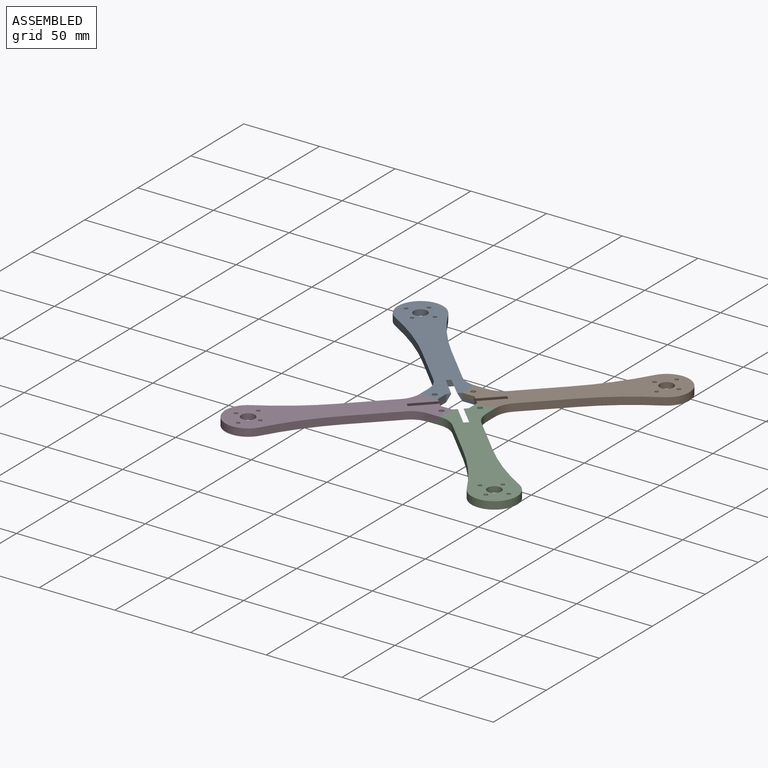
[diagram: assembled view]
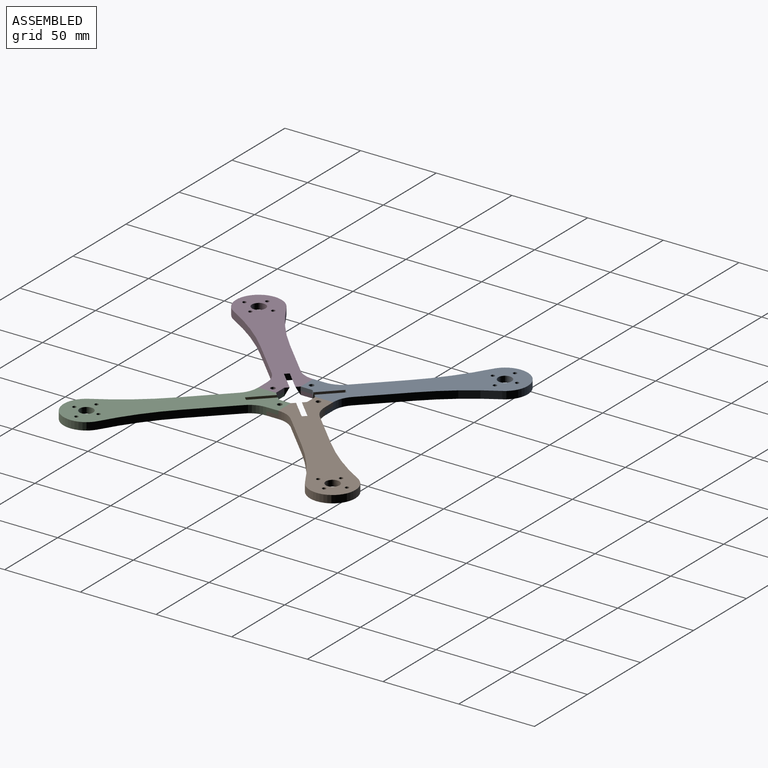
[diagram: assembled view, second angle]
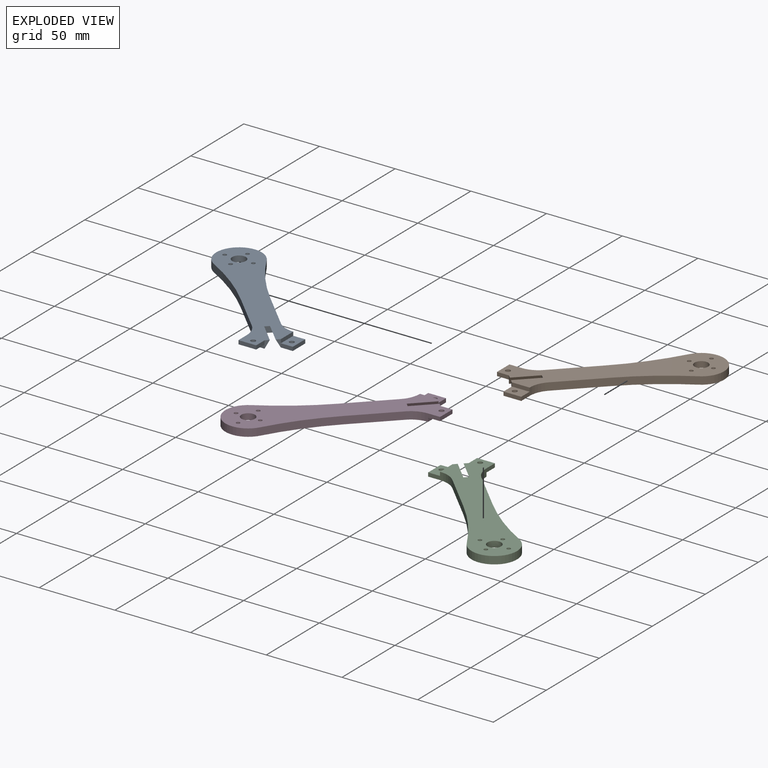
[diagram: exploded view]
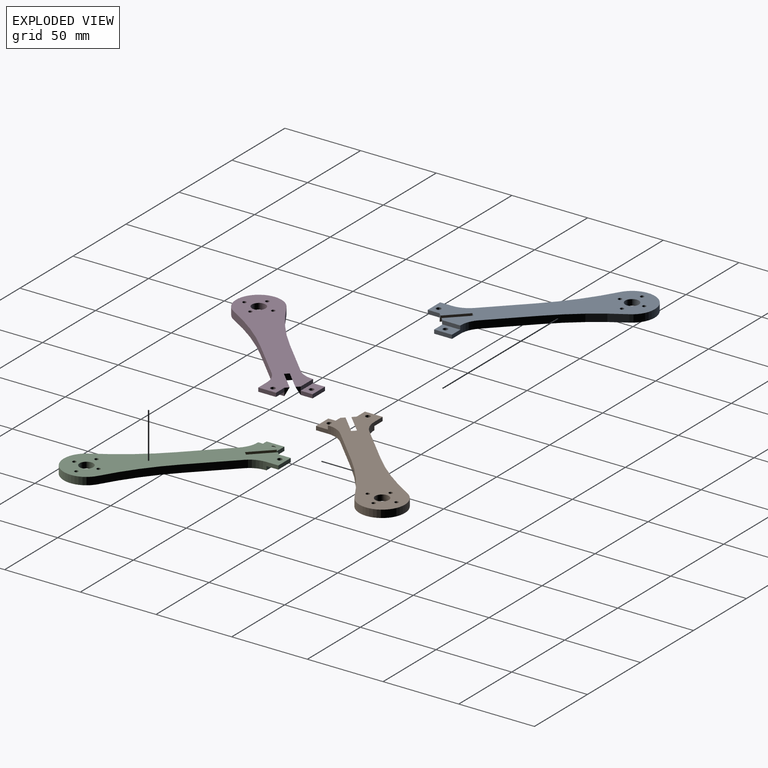
[diagram: exploded view, second angle]
ASSEMBLY  parts=4 mates=3
PART A: 39 faces, bbox 100.2x100.2x5 mm
  f0: plane 1.12x1.12mm, normal (-0.71,-0.71,0), area 1.3mm2, adj f1,f29,f34,f38
  f1: plane 100.25x92.39mm, normal (0,0,-1), area 719.6mm2, adj f0,f3,f7,f8,f9,f10,f11,f12
  f2: plane 5x2.04mm, normal (0.71,0.71,0), area 7.2mm2, adj f3,f19,f26,f37
  f3: plane 11.73x2.5mm, normal (1,0,0), area 29.3mm2, adj f1,f2,f13,f27,f37
  f4: plane 5.53x5.53mm, normal (0.71,0.71,0), area 22mm2, adj f19,f34,f37,f38
  f5: plane 5x2.04mm, normal (0.71,0.71,0), area 7.2mm2, adj f6,f19,f20,f38
  f6: plane 11.73x2.5mm, normal (0,1,0), area 29.3mm2, adj f5,f7,f19,f23
  f7: plane 7.99x5mm, normal (-1,0,0), area 20.3mm2, adj f1,f6,f8,f19,f21,f23
  f8: cylinder r=16mm len=11.31mm, axis (0,0,-1), area 62.8mm2, adj f1,f7,f9,f19
  f9: plane 24.16x24.16mm, normal (-0.71,0.71,0), area 170.8mm2, adj f1,f8,f19,f35
  f10: cylinder r=15mm len=28.07mm, axis (0,0,-1), area 276.5mm2, adj f1,f19,f35,f36
  f11: plane 24.16x24.16mm, normal (0.71,-0.71,0), area 170.8mm2, adj f1,f12,f19,f36
  f12: cylinder r=16mm len=11.31mm, axis (0,0,-1), area 62.8mm2, adj f1,f11,f13,f19
  f13: plane 7.99x5mm, normal (0,-1,0), area 20.3mm2, adj f1,f3,f12,f19,f24,f27
  f14: cylinder r=1.25mm len=4mm, axis (0,0,-1), area 31.4mm2, adj f19,f34
  f15: cylinder r=1.25mm len=4mm, axis (0,0,-1), area 31.4mm2, adj f19,f34
  f16: cylinder r=1.25mm len=4mm, axis (0,0,-1), area 31.4mm2, adj f19,f34
  f17: cylinder r=1.25mm len=4mm, axis (0,0,-1), area 31.4mm2, adj f19,f34
  f18: cylinder r=4.5mm len=9mm, axis (0,0,-1), area 113.1mm2, adj f19,f34
  f19: plane 100.25x92.39mm, normal (0,0,1), area 2277.5mm2, adj f2,f4,f5,f6,f7,f8,f9,f10
  f20: plane 7.86x2.5mm, normal (1,0,0), area 19.6mm2, adj f1,f5,f21,f23,f38
  f21: plane 11.73x2.5mm, normal (0,1,0), area 29.3mm2, adj f1,f7,f20,f23
  f22: cylinder r=1.6mm len=3.2mm, axis (0,0,-1), area 25.1mm2, adj f1,f23
  f23: plane 11.73x7.86mm, normal (0,0,1), area 84.1mm2, adj f6,f7,f20,f21,f22
  f24: plane 11.73x2.5mm, normal (1,0,0), area 29.3mm2, adj f13,f19,f26,f27
  f25: cylinder r=1.6mm len=3.2mm, axis (0,0,-1), area 25.1mm2, adj f19,f27
  f26: plane 7.86x2.5mm, normal (0,1,0), area 19.6mm2, adj f2,f19,f24,f27
  f27: plane 11.73x7.86mm, normal (0,0,-1), area 84.1mm2, adj f3,f13,f24,f25,f26
  f28: plane 1.12x1.12mm, normal (-0.71,-0.71,0), area 1.3mm2, adj f1,f33,f34,f37
  f29: cylinder r=1mm len=1.41mm, axis (0,0,-1), area 1.6mm2, adj f0,f1,f30,f34
  f30: plane 52.72x52.72mm, normal (0.71,-0.71,0), area 74.6mm2, adj f1,f29,f31,f34
  f31: cylinder r=13.5mm len=27mm, axis (0,0,-1), area 71.3mm2, adj f1,f30,f32,f34
  f32: plane 52.72x52.72mm, normal (-0.71,0.71,0), area 74.6mm2, adj f1,f31,f33,f34
  f33: cylinder r=1mm len=1.41mm, axis (0,0,-1), area 1.6mm2, adj f1,f28,f32,f34
  f34: plane 79.47x79.47mm, normal (0,0,-1), area 1456.4mm2, adj f0,f4,f14,f15,f16,f17,f18,f28
  f35: cylinder r=175mm len=37.84mm, axis (0,0,-1), area 238.3mm2, adj f1,f9,f10,f19
  f36: cylinder r=175mm len=37.84mm, axis (0,0,-1), area 238.3mm2, adj f1,f10,f11,f19
  f37: plane 14.47x14.46mm, normal (-0.61,0.61,-0.5), area 101.4mm2, adj f1,f2,f3,f4,f19,f28
  f38: plane 14.47x14.47mm, normal (0.61,-0.61,-0.5), area 101.4mm2, adj f0,f1,f4,f5,f19,f20
PART B: same geometry as A
PART C: same geometry as A
PART D: same geometry as A
PLACE A rot(axis=(0,0,-1),90deg) t=(-0.24,2.09,-2.5)mm
PLACE B rot(axis=(0,0,-1),180deg) t=(-0.24,2.09,-2.5)mm
PLACE C rot(axis=(0,0,1),90deg) t=(-0.24,2.09,-2.5)mm
PLACE D t=(-0.24,2.09,-2.5)mm
MATE fastened D.f25 <-> C.f22  axis (0,0,-1) through (-0.24,-12.91,0)mm
MATE fastened A.f22 <-> B.f25  axis (0,0,1) through (-0.24,17.09,0)mm
MATE fastened B.f22 <-> C.f25  axis (0,0,1) through (14.76,2.09,0)mm
